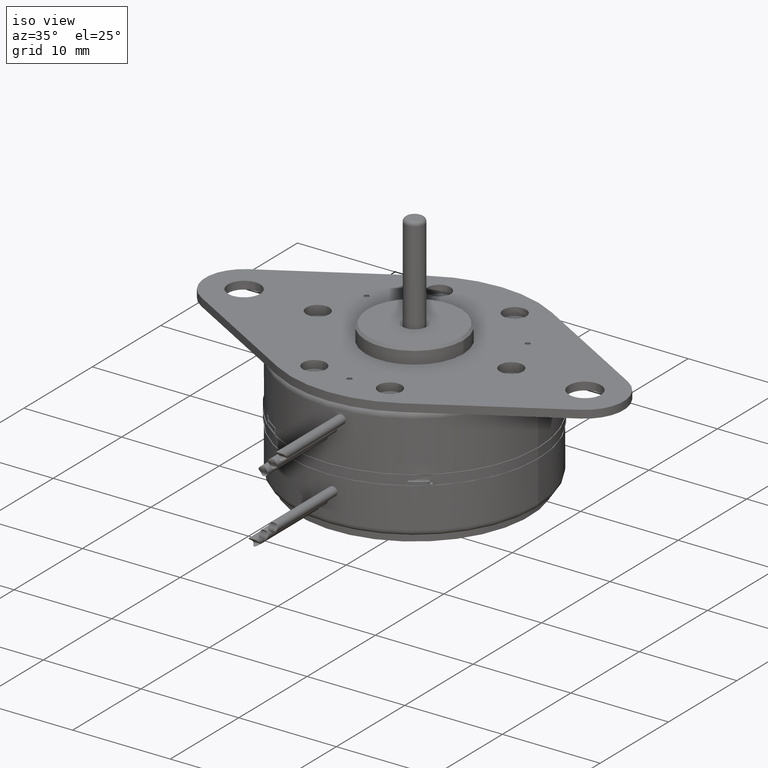
[diagram: clean part render]
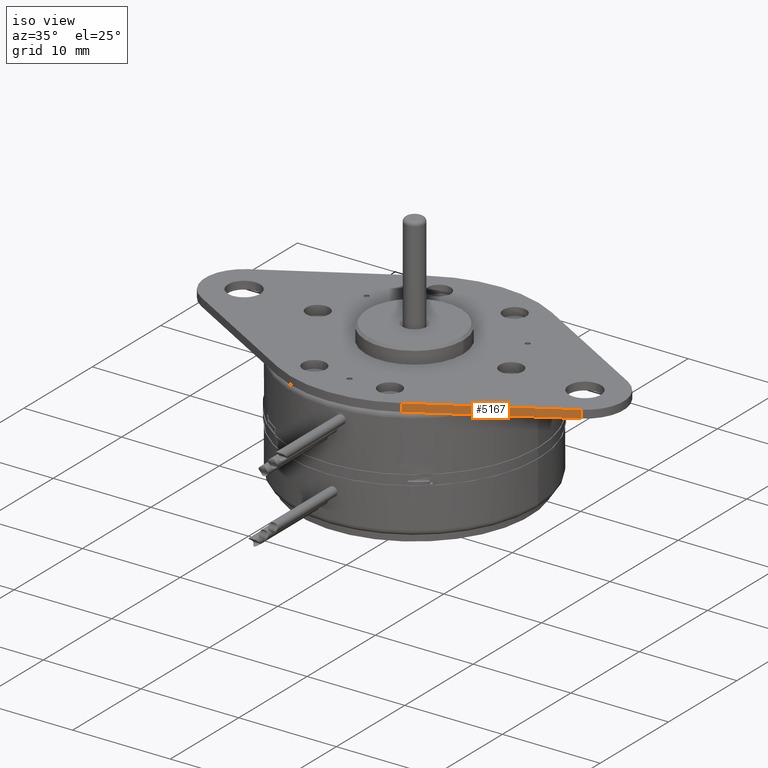
[diagram: same view with one face highlighted and labeled with its STEP entity id]
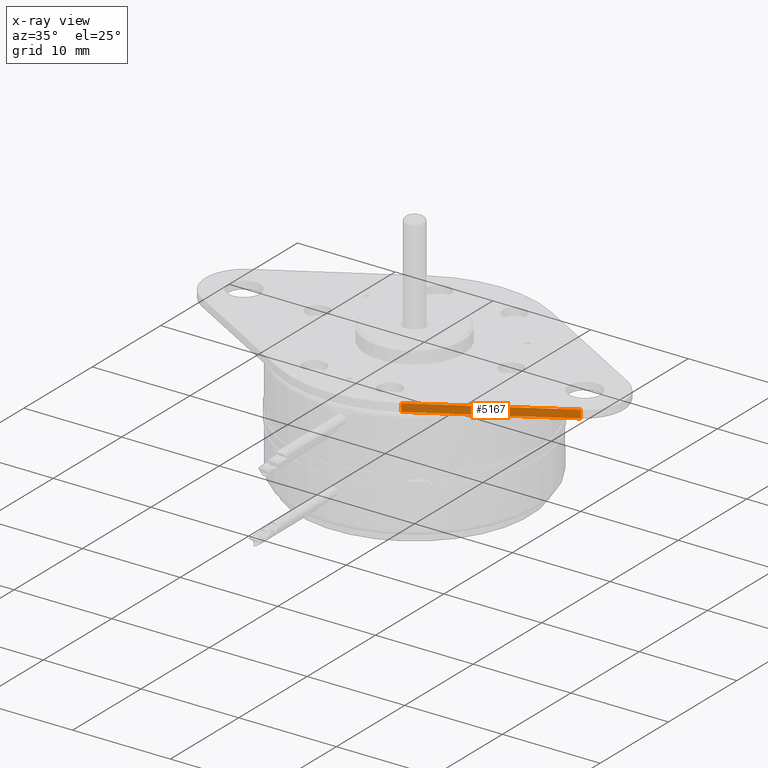
[diagram: x-ray of the same camera — body ghosted, the highlighted face saturated]
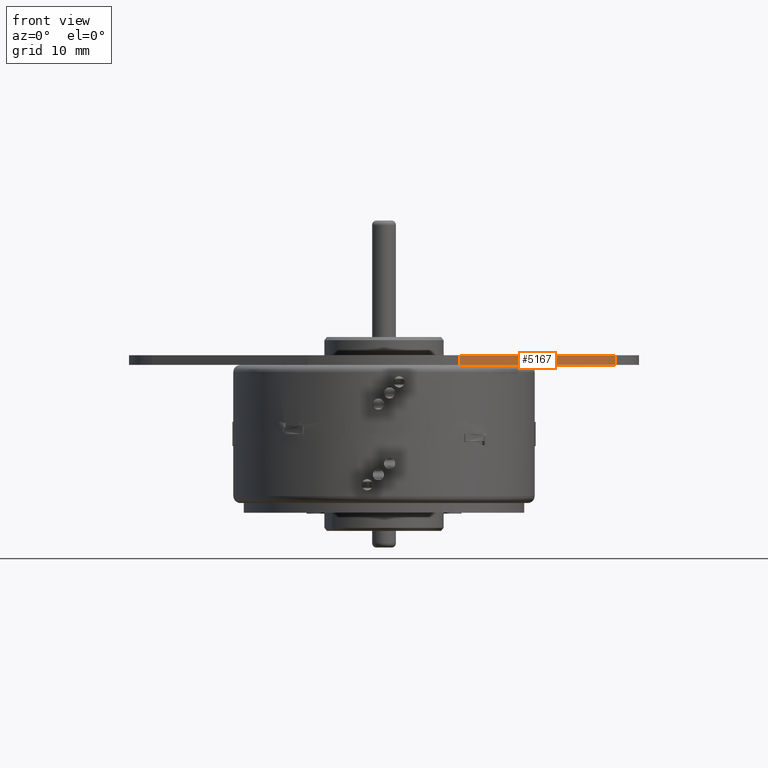
[diagram: same view with one face highlighted and labeled with its STEP entity id]
A machine part, iso view. The second image highlights one B-rep face of the part: STEP entity #5167.
The next image is the same camera in x-ray: the body ghosted, the highlighted face saturated — about 0% of this face is hidden behind the body in this view.
A second angle (front view) of the same face is appended — the face is thin or edge-on in the first view.
In plain terms, the highlighted planar face has unit normal (-0.5007, 0.8656, 0).
Its self-contained STEP definition (entity closure, byte-faithful):
#494=DIRECTION('',(8.656047991239E-1,5.007278020378E-1,0.E0));
#495=VECTOR('',#494,5.946704969979E-1);
#496=CARTESIAN_POINT('',(2.503639010190E-1,-4.328023995619E-1,2.28E-1));
#497=LINE('',#496,#495);
#533=DIRECTION('',(0.E0,0.E0,1.E0));
#534=VECTOR('',#533,3.2E-2);
#535=CARTESIAN_POINT('',(7.651135371178E-1,-1.350343486634E-1,2.28E-1));
#536=LINE('',#535,#534);
#545=DIRECTION('',(0.E0,0.E0,-1.E0));
#546=VECTOR('',#545,3.2E-2);
#547=CARTESIAN_POINT('',(2.503639010190E-1,-4.328023995619E-1,2.6E-1));
#548=LINE('',#547,#546);
#574=DIRECTION('',(-8.656047991239E-1,-5.007278020378E-1,0.E0));
#575=VECTOR('',#574,5.946704969979E-1);
#576=CARTESIAN_POINT('',(7.651135371178E-1,-1.350343486634E-1,2.6E-1));
#577=LINE('',#576,#575);
#4191=CARTESIAN_POINT('',(2.503639010192E-1,-4.328023995618E-1,2.28E-1));
#4192=VERTEX_POINT('',#4191);
#4193=CARTESIAN_POINT('',(7.651135371178E-1,-1.350343486634E-1,2.28E-1));
#4194=VERTEX_POINT('',#4193);
#4209=CARTESIAN_POINT('',(7.651135371178E-1,-1.350343486634E-1,2.6E-1));
#4210=VERTEX_POINT('',#4209);
#4211=CARTESIAN_POINT('',(2.503639010190E-1,-4.328023995619E-1,2.6E-1));
#4212=VERTEX_POINT('',#4211);
#5154=CARTESIAN_POINT('',(5.077387190684E-1,-2.839183741126E-1,2.44E-1));
#5155=DIRECTION('',(-5.007278020377E-1,8.656047991240E-1,0.E0));
#5156=DIRECTION('',(8.656047991240E-1,5.007278020377E-1,0.E0));
#5157=AXIS2_PLACEMENT_3D('',#5154,#5155,#5156);
#5158=PLANE('',#5157);
#5159=ORIENTED_EDGE('',*,*,#5098,.F.);
#5161=ORIENTED_EDGE('',*,*,#5160,.F.);
#5163=ORIENTED_EDGE('',*,*,#5162,.F.);
#5164=ORIENTED_EDGE('',*,*,#5146,.F.);
#5165=EDGE_LOOP('',(#5159,#5161,#5163,#5164));
#5166=FACE_OUTER_BOUND('',#5165,.F.);
#5167=ADVANCED_FACE('',(#5166),#5158,.F.);
#5098=EDGE_CURVE('',#4192,#4194,#497,.T.);
#5146=EDGE_CURVE('',#4194,#4210,#536,.T.);
#5160=EDGE_CURVE('',#4212,#4192,#548,.T.);
#5162=EDGE_CURVE('',#4210,#4212,#577,.T.);